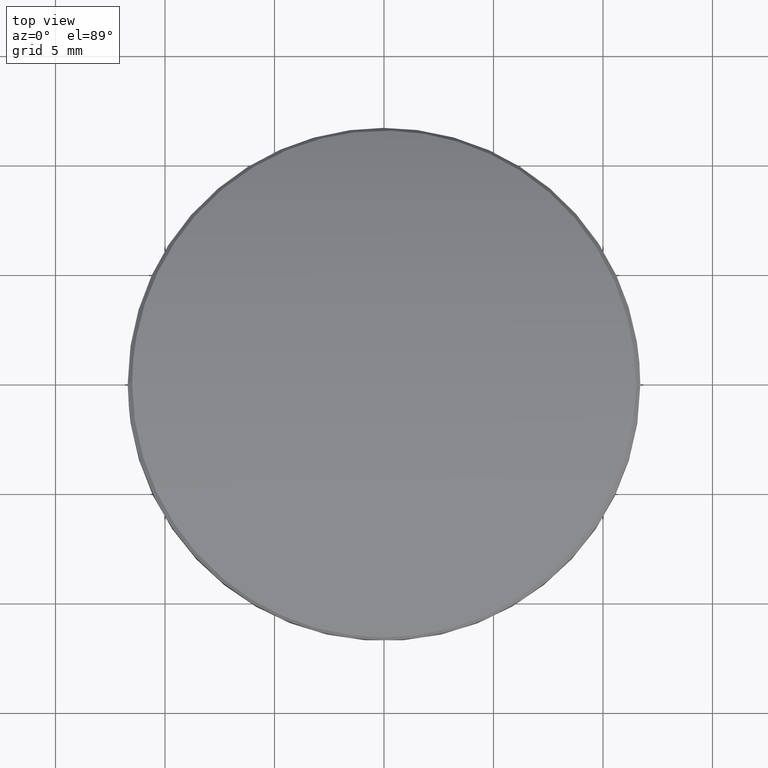
[diagram: clean part render]
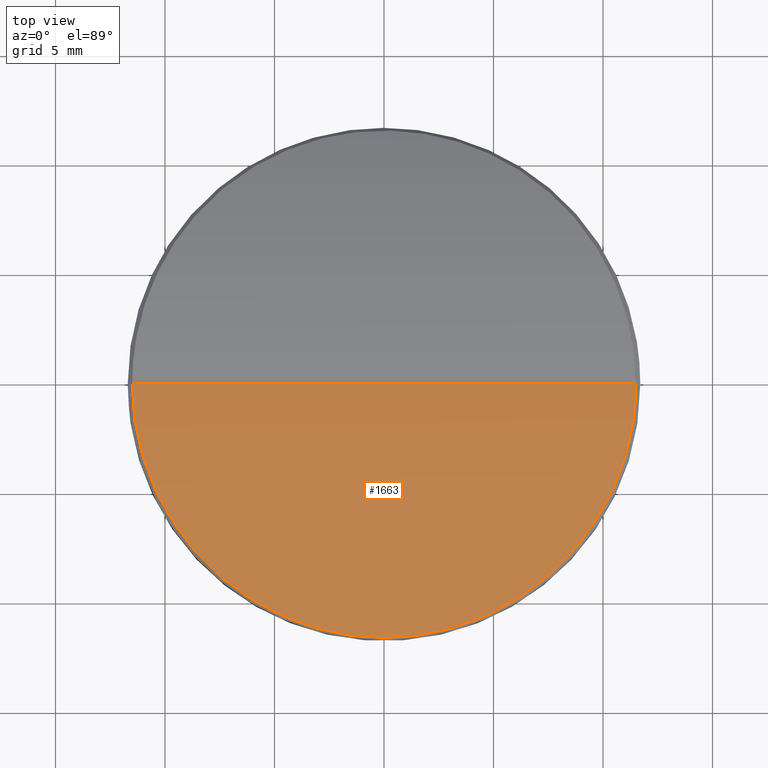
[diagram: same view with one face highlighted and labeled with its STEP entity id]
A machine part, top view. The second image highlights one B-rep face of the part: STEP entity #1663.
In plain terms, the highlighted cylindrical surface (partial cylindrical patch) has radius 30.72 mm, axis along (-1, 0, 0).
Its self-contained STEP definition (entity closure, byte-faithful):
#75 = CARTESIAN_POINT ( 'NONE',  ( 2.634739297702239025, -11.27381394373869128, 2.351942949572985331 ) ) ;
#86 = CARTESIAN_POINT ( 'NONE',  ( -9.343172432994466092, -6.751451623406878433, 3.744603375684843360 ) ) ;
#99 = CARTESIAN_POINT ( 'NONE',  ( -11.46223143453378945, -0.9564036529791796193, 4.480966193001895803 ) ) ;
#109 = CARTESIAN_POINT ( 'NONE',  ( -0.3810864403200319162, -11.57536117641179452, 2.231019867520539268 ) ) ;
#131 = CARTESIAN_POINT ( 'NONE',  ( 4.076863911702191423, -10.83023585381156551, 2.523296172639082346 ) ) ;
#143 = CARTESIAN_POINT ( 'NONE',  ( 7.999918230051285661, -8.317688416930966611, 3.348124208861293916 ) ) ;
#157 = CARTESIAN_POINT ( 'NONE',  ( 11.50000000000482459, -1.001970321371982085E-14, 4.495275040937256605 ) ) ;
#182 = CARTESIAN_POINT ( 'NONE',  ( 7.443438596889071057, -8.825602031063343844, 3.200481956657890148 ) ) ;
#272 = CARTESIAN_POINT ( 'NONE',  ( 11.49999998676731039, -0.0005552962447063965754, 4.495275035918511186 ) ) ;
#286 = CARTESIAN_POINT ( 'NONE',  ( -11.11005669602768187, -3.013158417514978371, 4.349365772967262345 ) ) ;
#309 = CARTESIAN_POINT ( 'NONE',  ( -11.20206051609615372, -2.645361057831058460, 4.383456536819012150 ) ) ;
#335 = CARTESIAN_POINT ( 'NONE',  ( 5.772395244976433304, -10.01851047871934064, 2.816335050759078307 ) ) ;
#341 = ORIENTED_EDGE ( 'NONE', *, *, #1766, .T. ) ;
#347 = CARTESIAN_POINT ( 'NONE',  ( 11.05250458215121689, -3.203312163983512484, 4.328357433614069549 ) ) ;
#360 = CARTESIAN_POINT ( 'NONE',  ( 9.966818718691794032, -5.823643891908139913, 3.945033342617314531 ) ) ;
#410 = CARTESIAN_POINT ( 'NONE',  ( 11.49999999450347943, -0.0003811408247685835345, 4.495275038712310156 ) ) ;
#425 = DIRECTION ( 'NONE',  ( -1.000000000000000000, 0.000000000000000000, 0.000000000000000000 ) ) ;
#434 = LINE ( 'NONE', #447, #652 ) ;
#447 = CARTESIAN_POINT ( 'NONE',  ( 40.00000000000000000, 0.000000000000000000, 4.495275040937292133 ) ) ;
#490 = CARTESIAN_POINT ( 'NONE',  ( -4.772968008206387225, -10.53810756509757418, 2.631658634481825576 ) ) ;
#502 = CARTESIAN_POINT ( 'NONE',  ( -2.997054228865274172, -11.18194043198571741, 2.388157913097883167 ) ) ;
#512 = CARTESIAN_POINT ( 'NONE',  ( -9.763507836614708779, -6.127941767474882617, 3.879584762496428585 ) ) ;
#522 = CARTESIAN_POINT ( 'NONE',  ( -9.002286162906901978, -7.205391384085891637, 3.638684053540874874 ) ) ;
#534 = CARTESIAN_POINT ( 'NONE',  ( 10.94169483980433277, -3.567969616751986539, 4.287922342139383503 ) ) ;
#544 = CARTESIAN_POINT ( 'NONE',  ( 11.19603071847858722, -2.650663394968755693, 4.381267090656739249 ) ) ;
#610 = DIRECTION ( 'NONE',  ( 0.000000000000000000, 0.000000000000000000, 1.000000000000000000 ) ) ;
#624 = CARTESIAN_POINT ( 'NONE',  ( 11.50000000000482459, -1.001970321371982085E-14, 4.495275040937256605 ) ) ;
#652 = VECTOR ( 'NONE', #425, 1000.000000000000000 ) ;
#669 = CARTESIAN_POINT ( 'NONE',  ( 2.999064243212329117, -11.18125268489469804, 2.388421075238336577 ) ) ;
#683 = CARTESIAN_POINT ( 'NONE',  ( -10.46948977267886249, -4.804165024755670643, 4.119341686015092208 ) ) ;
#714 = CARTESIAN_POINT ( 'NONE',  ( 0.7642083558903400853, -11.55137661669985150, 2.240766520437363685 ) ) ;
#726 = CARTESIAN_POINT ( 'NONE',  ( 10.75570482226477331, -4.101036495460907538, 4.220833023600254919 ) ) ;
#734 = CARTESIAN_POINT ( 'NONE',  ( 11.49999885472736771, -0.02238027465885790088, 4.495274641409119809 ) ) ;
#747 = B_SPLINE_CURVE_WITH_KNOTS ( 'NONE', 3,
 ( #1212, #1821, #410, #1387, #2012, #624 ),
 .UNSPECIFIED., .F., .F.,
 ( 4, 2, 4 ),
 ( 0.5000000000000000000, 0.5000038146972655140, 0.5000076293945310280 ),
 .UNSPECIFIED. ) ;
#759 = CARTESIAN_POINT ( 'NONE',  ( 11.34547631692787206, -1.900931189504695862, 4.436992890119014987 ) ) ;
#860 = CARTESIAN_POINT ( 'NONE',  ( -10.88795482787426572, -3.745565501975349321, 4.268305175869017809 ) ) ;
#885 = CARTESIAN_POINT ( 'NONE',  ( -9.450716463092451392, -6.598036558623241454, 3.778774788472608837 ) ) ;
#897 = CARTESIAN_POINT ( 'NONE',  ( -11.35062215643367978, -1.898253914916297802, 4.438858355442953929 ) ) ;
#920 = CARTESIAN_POINT ( 'NONE',  ( 7.863250135605364122, -8.448718199108794735, 3.310930896649770361 ) ) ;
#929 = VERTEX_POINT ( 'NONE', #272 ) ;
#932 = CARTESIAN_POINT ( 'NONE',  ( 11.31262153270441040, -2.089901901803446371, 4.424685256524196753 ) ) ;
#935 = EDGE_CURVE ( 'NONE', #1744, #929, #1510, .T. ) ;
#953 = VERTEX_POINT ( 'NONE', #157 ) ;
#967 = CARTESIAN_POINT ( 'NONE',  ( 9.340157164018689784, -6.763553606697284337, 3.743181685374763479 ) ) ;
#981 = DIRECTION ( 'NONE',  ( -1.000000000000000000, 0.000000000000000000, 0.000000000000000000 ) ) ;
#1053 = CARTESIAN_POINT ( 'NONE',  ( -9.118742740809926417, -7.055495645625797785, 3.674484412652479826 ) ) ;
#1066 = CARTESIAN_POINT ( 'NONE',  ( -3.726166620880707381, -10.95761274737955659, 2.474814775206946926 ) ) ;
#1089 = CARTESIAN_POINT ( 'NONE',  ( -10.75820154081689850, -4.107390143437499752, 4.221485451357851026 ) ) ;
#1111 = CARTESIAN_POINT ( 'NONE',  ( 7.585610307522333784, -8.702093025380600366, 3.237274005920257824 ) ) ;
#1117 = EDGE_LOOP ( 'NONE', ( #2519, #341, #1425 ) ) ;
#1123 = CARTESIAN_POINT ( 'NONE',  ( 6.710674944269122477, -9.407639548621737902, 3.020151735761059886 ) ) ;
#1148 = CARTESIAN_POINT ( 'NONE',  ( 5.117052648957182370, -10.37307058614321775, 2.691587484282653264 ) ) ;
#1160 = CARTESIAN_POINT ( 'NONE',  ( 11.46269969593702776, -0.9508159007194595391, 4.481142557101517099 ) ) ;
#1212 = CARTESIAN_POINT ( 'NONE',  ( 11.49999998676731039, -0.0005552962447063965754, 4.495275035918511186 ) ) ;
#1254 = CARTESIAN_POINT ( 'NONE',  ( -2.627252034344375708, -11.27568080876411472, 2.351207188878260634 ) ) ;
#1279 = CARTESIAN_POINT ( 'NONE',  ( -1.884569364726095264, -11.42523707759672646, 2.291741048238518541 ) ) ;
#1289 = CARTESIAN_POINT ( 'NONE',  ( 1.522064806046125929, -11.47986806241201840, 2.269707946408431987 ) ) ;
#1308 = CARTESIAN_POINT ( 'NONE',  ( 9.118557183850866110, -7.063124688692283826, 3.673759080462658755 ) ) ;
#1319 = CARTESIAN_POINT ( 'NONE',  ( 8.395362629966490076, -7.919655469489712551, 3.458153123837302889 ) ) ;
#1331 = CARTESIAN_POINT ( 'NONE',  ( 11.40180557392347716, -1.521621885594550028, 4.458155409105796885 ) ) ;
#1387 = CARTESIAN_POINT ( 'NONE',  ( 11.49999999891597469, -0.0001960420765262998685, 4.495275040451172543 ) ) ;
#1425 = ORIENTED_EDGE ( 'NONE', *, *, #1691, .T. ) ;
#1446 = CARTESIAN_POINT ( 'NONE',  ( -0.7572647571879508321, -11.55654886042649032, 2.238694190589039401 ) ) ;
#1459 = CARTESIAN_POINT ( 'NONE',  ( 0.3828482416224431861, -11.57053584167413263, 2.232984141405403467 ) ) ;
#1472 = CARTESIAN_POINT ( 'NONE',  ( -8.645725415160905314, -7.641957482567428350, 3.531093585253635148 ) ) ;
#1482 = CARTESIAN_POINT ( 'NONE',  ( -6.092600047484673986, -9.824722307994296244, 2.882709820314566684 ) ) ;
#1492 = CARTESIAN_POINT ( 'NONE',  ( 1.898206488969552908, -11.42283989289497903, 2.292700562533258601 ) ) ;
#1510 = B_SPLINE_CURVE_WITH_KNOTS ( 'NONE', 3,
 ( #2055, #2477, #2429, #1647, #99, #2286, #897, #309, #286, #860, #1089, #683, #1875, #2273, #512, #885, #86, #1053, #522, #1472, #2454, #1839, #1670, #1482, #1693, #1658, #490, #2261, #1066, #502, #1254, #1279, #2064, #1446, #109, #1885, #1459, #714, #2466, #1289, #1492, #75, #669, #2235, #131, #1928, #1148, #335, #1702, #1123, #1904, #182, #1111, #920, #143, #1319, #1895, #1308, #967, #360, #2526, #2486, #726, #2295, #534, #347, #1724, #544, #1918, #932, #759, #1331, #2342, #1160, #2499, #2095, #2108, #1712, #1749, #734, #2305 ),
 .UNSPECIFIED., .F., .F.,
 ( 4, 2, 2, 2, 2, 2, 2, 2, 2, 2, 2, 2, 2, 2, 2, 2, 2, 2, 2, 2, 2, 2, 2, 2, 2, 2, 2, 2, 2, 2, 2, 2, 2, 2, 2, 2, 2, 1, 1, 1, 2, 4 ),
 ( 0.000000000000000000, 0.007812500000000032960, 0.01562500000000006245, 0.03125000000000011796, 0.04687500000000016653, 0.06250000000000022204, 0.07812500000000027756, 0.09375000000000031919, 0.1015625000000003469, 0.1093750000000003469, 0.1250000000000003331, 0.1562500000000003886, 0.1718750000000004163, 0.1875000000000004441, 0.2031250000000004996, 0.2187500000000005274, 0.2343750000000005829, 0.2500000000000006106, 0.2578125000000006661, 0.2656250000000006661, 0.2812500000000007216, 0.2968750000000008327, 0.3125000000000008882, 0.3281250000000009437, 0.3437500000000009992, 0.3593750000000010547, 0.3671875000000011102, 0.3750000000000010547, 0.3906250000000009992, 0.4062500000000008882, 0.4375000000000006106, 0.4453125000000005551, 0.4531250000000004441, 0.4609375000000003886, 0.4687500000000003331, 0.4765625000000002220, 0.4843750000000001665, 0.4921875000000000555, 0.4960937500000000555, 0.4980468750000000555, 0.4990234375000000555, 0.5000000000000000000 ),
 .UNSPECIFIED. ) ;
#1628 = FACE_OUTER_BOUND ( 'NONE', #1117, .T. ) ;
#1647 = CARTESIAN_POINT ( 'NONE',  ( -11.47648178333072977, -0.7642894323787031707, 4.486359728286555715 ) ) ;
#1658 = CARTESIAN_POINT ( 'NONE',  ( -5.109698683329785496, -10.37685174108349884, 2.690239229518724517 ) ) ;
#1663 = ADVANCED_FACE ( 'NONE', ( #1628 ), #1989, .T. ) ;
#1670 = CARTESIAN_POINT ( 'NONE',  ( -7.031878133803144415, -9.190609329733256061, 3.091639269944780555 ) ) ;
#1691 = EDGE_CURVE ( 'NONE', #953, #1744, #434, .T. ) ;
#1693 = CARTESIAN_POINT ( 'NONE',  ( -5.770252013375839262, -10.01986478759049604, 2.815876200723540723 ) ) ;
#1702 = CARTESIAN_POINT ( 'NONE',  ( 6.093085480180250535, -9.824208499482111279, 2.882858625476590664 ) ) ;
#1712 = CARTESIAN_POINT ( 'NONE',  ( 11.49963127057576706, -0.09573615942608282303, 4.495135077924555134 ) ) ;
#1724 = CARTESIAN_POINT ( 'NONE',  ( 11.10337175788608022, -3.019841135008033195, 4.347048383356123757 ) ) ;
#1744 = VERTEX_POINT ( 'NONE', #2164 ) ;
#1749 = CARTESIAN_POINT ( 'NONE',  ( 11.49992476220698023, -0.04815039668743103379, 4.495246519498396154 ) ) ;
#1753 = AXIS2_PLACEMENT_3D ( 'NONE', #2178, #981, #610 ) ;
#1766 = EDGE_CURVE ( 'NONE', #929, #953, #747, .T. ) ;
#1821 = CARTESIAN_POINT ( 'NONE',  ( 11.49999999118934468, -0.0004700424227785933266, 4.495275037459563805 ) ) ;
#1839 = CARTESIAN_POINT ( 'NONE',  ( -7.604466297708566636, -8.715685016695829290, 3.238097285712601359 ) ) ;
#1875 = CARTESIAN_POINT ( 'NONE',  ( -10.30814977163496060, -5.145358316929261377, 4.063171389036319248 ) ) ;
#1885 = CARTESIAN_POINT ( 'NONE',  ( 0.1913862724969566109, -11.57536002015370791, 2.231020337868586001 ) ) ;
#1895 = CARTESIAN_POINT ( 'NONE',  ( 8.646109257397727177, -7.641393779399951569, 3.531218637770434210 ) ) ;
#1904 = CARTESIAN_POINT ( 'NONE',  ( 7.009062326882303573, -9.184675823301718722, 3.091187835792925664 ) ) ;
#1918 = CARTESIAN_POINT ( 'NONE',  ( 11.23753165280619370, -2.466415053873851182, 4.396686394833258404 ) ) ;
#1928 = CARTESIAN_POINT ( 'NONE',  ( 4.773812236424861410, -10.53776309565340696, 2.631786898364610661 ) ) ;
#1989 = CYLINDRICAL_SURFACE ( 'NONE', #1753, 30.71999999999999886 ) ;
#2012 = CARTESIAN_POINT ( 'NONE',  ( 11.50000000001367972, -9.300976999092246621E-05, 4.495275040937293021 ) ) ;
#2055 = CARTESIAN_POINT ( 'NONE',  ( -11.50000000000001066, -2.810049934266835424E-15, 4.495275040937291244 ) ) ;
#2064 = CARTESIAN_POINT ( 'NONE',  ( -1.512085838686791028, -11.48120723644850472, 2.269167924253694846 ) ) ;
#2095 = CARTESIAN_POINT ( 'NONE',  ( 11.49590838602066789, -0.3335664736949384701, 4.493721653337575894 ) ) ;
#2108 = CARTESIAN_POINT ( 'NONE',  ( 11.49897276605807583, -0.1671054016539805509, 4.494885011954453446 ) ) ;
#2164 = CARTESIAN_POINT ( 'NONE',  ( -11.50000000000001066, -2.810049934266835424E-15, 4.495275040937291244 ) ) ;
#2178 = CARTESIAN_POINT ( 'NONE',  ( 40.00000000000000000, 0.000000000000000000, -26.22472495906270495 ) ) ;
#2235 = CARTESIAN_POINT ( 'NONE',  ( 3.720494114909621786, -10.95942698922532443, 2.474116440052029908 ) ) ;
#2261 = CARTESIAN_POINT ( 'NONE',  ( -4.078109671563671768, -10.82972287761836228, 2.523486942642452213 ) ) ;
#2273 = CARTESIAN_POINT ( 'NONE',  ( -9.955271975607075774, -5.806833725485148534, 3.943338609674213124 ) ) ;
#2286 = CARTESIAN_POINT ( 'NONE',  ( -11.40621374574670277, -1.523453928233829968, 4.459808545981662320 ) ) ;
#2295 = CARTESIAN_POINT ( 'NONE',  ( 10.88290848498217755, -3.745634613057247542, 4.266597127036843240 ) ) ;
#2305 = CARTESIAN_POINT ( 'NONE',  ( 11.49999998676731039, -0.0005552962447063965754, 4.495275035918511186 ) ) ;
#2342 = CARTESIAN_POINT ( 'NONE',  ( 11.42542903154726019, -1.329768477490837819, 4.467066559086928734 ) ) ;
#2429 = CARTESIAN_POINT ( 'NONE',  ( -11.49529549279581708, -0.3824606318602402633, 4.493487633389042557 ) ) ;
#2454 = CARTESIAN_POINT ( 'NONE',  ( -8.394743840230976417, -7.920300247732388499, 3.457978909859695804 ) ) ;
#2466 = CARTESIAN_POINT ( 'NONE',  ( 0.9565734897893525268, -11.53681965101386631, 2.246674930540125015 ) ) ;
#2477 = CARTESIAN_POINT ( 'NONE',  ( -11.49999928010806372, -0.1913245557342801162, 4.495275040937293021 ) ) ;
#2486 = CARTESIAN_POINT ( 'NONE',  ( 10.68776551199880664, -4.277200372674660578, 4.196568563313034517 ) ) ;
#2499 = CARTESIAN_POINT ( 'NONE',  ( 11.48366814796133184, -0.6662092328979672962, 4.489079121029603492 ) ) ;
#2519 = ORIENTED_EDGE ( 'NONE', *, *, #935, .T. ) ;
#2526 = CARTESIAN_POINT ( 'NONE',  ( 10.32638156613264790, -5.150249490472283753, 4.068700265343103695 ) ) ;